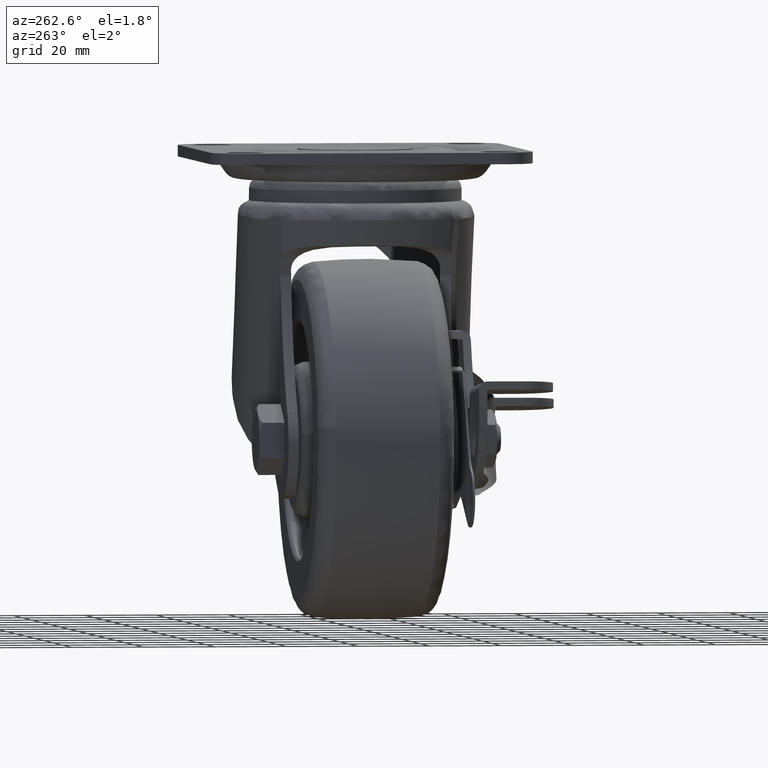
[diagram: clean part render]
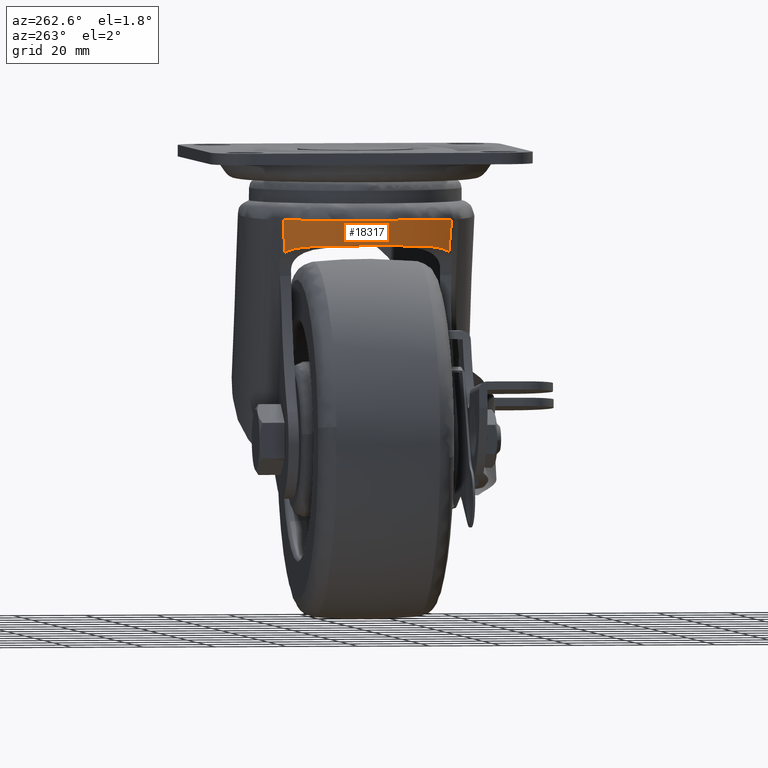
[diagram: same view with one face highlighted and labeled with its STEP entity id]
A machine part, auxiliary view. The second image highlights one B-rep face of the part: STEP entity #18317.
In plain terms, the highlighted face is a freeform B-spline surface patch.
Its self-contained STEP definition (entity closure, byte-faithful):
#17599=CARTESIAN_POINT('',(-24.933118892045599,-22.950727284911999,-27.980760139879798));
#17600=VERTEX_POINT('',#17599);
#17622=CARTESIAN_POINT('',(-28.989097889115950,-15.699060261423950,-26.342088645274750));
#17623=VERTEX_POINT('',#17622);
#17624=CARTESIAN_POINT('',(-28.989097889115950,-15.699060261423950,-26.342088645274750));
#17625=CARTESIAN_POINT('',(-28.717151083542220,-16.360257172583740,-26.367188820546300));
#17626=CARTESIAN_POINT('',(-28.427844731329021,-17.009941421769319,-26.408512831152091));
#17627=CARTESIAN_POINT('',(-27.814842183975721,-18.284281183525980,-26.537615192077460));
#17628=CARTESIAN_POINT('',(-27.491145303498310,-18.908957324959399,-26.625258347250469));
#17629=CARTESIAN_POINT('',(-26.979942690302060,-19.824981146487200,-26.806310295977191));
#17630=CARTESIAN_POINT('',(-26.805264507995741,-20.126814869067569,-26.874980793155490));
#17631=CARTESIAN_POINT('',(-26.536839328768369,-20.573898067478851,-26.993109369107291));
#17632=CARTESIAN_POINT('',(-26.446296227558982,-20.721980141726672,-27.035012892360271));
#17633=CARTESIAN_POINT('',(-26.263074648218659,-21.016168870469190,-27.124418813689431));
#17634=CARTESIAN_POINT('',(-26.170289647923958,-21.162440040984599,-27.171978355026830));
#17635=CARTESIAN_POINT('',(-25.889441133211360,-21.597047830444861,-27.323625127078511));
#17636=CARTESIAN_POINT('',(-25.700108610537491,-21.879307004310562,-27.435963292954401));
#17637=CARTESIAN_POINT('',(-25.318466186563580,-22.427610226136618,-27.687149081212951));
#17638=CARTESIAN_POINT('',(-25.126150863697980,-22.693663643570680,-27.825971683841811));
#17639=CARTESIAN_POINT('',(-24.933118892045592,-22.950727284912009,-27.980760139879791));
#17640=B_SPLINE_CURVE_WITH_KNOTS('',3,(#17624,#17625,#17626,#17627,#17628,#17629,#17630,#17631,#17632,#17633,#17634,#17635,#17636,#17637,#17638,#17639),.UNSPECIFIED.,.F.,.U.,(4,2,2,2,2,2,2,4),(0.0,0.250000000000000,0.500000000000000,0.625000000000001,0.687500000000000,0.750000000000000,0.875000000000000,1.0),.UNSPECIFIED.);
#17641=EDGE_CURVE('',#17623,#17600,#17640,.T.);
#17731=CARTESIAN_POINT('',(-28.989097889125951,15.699060261399550,-26.342088645273801));
#17732=VERTEX_POINT('',#17731);
#17738=CARTESIAN_POINT('',(-24.933118892045449,22.950727284912151,-27.980760139879902));
#17739=VERTEX_POINT('',#17738);
#17740=CARTESIAN_POINT('',(-24.933118892045460,22.950727284912169,-27.980760139879891));
#17741=CARTESIAN_POINT('',(-25.125653332762120,22.694326213159339,-27.826370643893529));
#17742=CARTESIAN_POINT('',(-25.317242263424180,22.429292377552109,-27.688046423535869));
#17743=CARTESIAN_POINT('',(-25.697075953674268,21.883739404295671,-27.437868528875409));
#17744=CARTESIAN_POINT('',(-25.885326002857941,21.603210786973332,-27.326041507284540));
#17745=CARTESIAN_POINT('',(-26.164351260548582,21.171727801621600,-27.175091771772919));
#17746=CARTESIAN_POINT('',(-26.256803375894080,21.026115229579649,-27.127583028022691));
#17747=CARTESIAN_POINT('',(-26.440473376066372,20.731444799209360,-27.037756831936250));
#17748=CARTESIAN_POINT('',(-26.531578877921781,20.582557694149099,-26.995501644667421));
#17749=CARTESIAN_POINT('',(-26.801158601565650,20.133849623506649,-26.876639329625689));
#17750=CARTESIAN_POINT('',(-26.976482571863180,19.831052447377171,-26.807614696704970));
#17751=CARTESIAN_POINT('',(-27.489324091044150,18.912475255993819,-26.625747494256210));
#17752=CARTESIAN_POINT('',(-27.813718604102998,18.286545524922079,-26.537881083746591));
#17753=CARTESIAN_POINT('',(-28.427612290348218,17.010495885461410,-26.408532590933671));
#17754=CARTESIAN_POINT('',(-28.717110570333020,16.360355674209579,-26.367192559838809));
#17755=CARTESIAN_POINT('',(-28.989097889126050,15.699060261399600,-26.342088645273801));
#17756=B_SPLINE_CURVE_WITH_KNOTS('',3,(#17740,#17741,#17742,#17743,#17744,#17745,#17746,#17747,#17748,#17749,#17750,#17751,#17752,#17753,#17754,#17755),.UNSPECIFIED.,.F.,.U.,(4,2,2,2,2,2,2,4),(0.0,0.125000000000000,0.250000000000000,0.312500000000000,0.375000000000000,0.500000000000000,0.750000000000000,1.0),.UNSPECIFIED.);
#17757=EDGE_CURVE('',#17739,#17732,#17756,.T.);
#17896=CARTESIAN_POINT('',(-28.989097889115971,-15.699060261423959,-26.342088645274711));
#17897=CARTESIAN_POINT('',(-29.497584835626331,-14.462752308933309,-26.295156262841360));
#17898=CARTESIAN_POINT('',(-29.947561954378038,-13.198413713781280,-26.253624226732171));
#17899=CARTESIAN_POINT('',(-30.385884363806600,-11.743502661384730,-26.213167898227411));
#17900=CARTESIAN_POINT('',(-30.433641440236929,-11.581392953051379,-26.208760010492409));
#17901=CARTESIAN_POINT('',(-30.527253446122870,-11.256262263797129,-26.200119799586819));
#17902=CARTESIAN_POINT('',(-30.573119477066129,-11.093195066427150,-26.195886451769919));
#17903=CARTESIAN_POINT('',(-30.707481867365999,-10.603977978708830,-26.183485057536519));
#17904=CARTESIAN_POINT('',(-30.792870700798641,-10.277379850672880,-26.175603829879250));
#17905=CARTESIAN_POINT('',(-31.036615643762818,-9.296240066590734,-26.153106633131340));
#17906=CARTESIAN_POINT('',(-31.182557908192528,-8.640353845895172,-26.139636438440188));
#17907=CARTESIAN_POINT('',(-31.571526028387140,-6.667403217933400,-26.103735417388151));
#17908=CARTESIAN_POINT('',(-31.765806723480559,-5.345059139515455,-26.085803677066949));
#17909=CARTESIAN_POINT('',(-32.025740625137850,-2.686439120907950,-26.061812270082559));
#17910=CARTESIAN_POINT('',(-32.091395724909532,-1.350163385774954,-26.055752428679892));
#17911=CARTESIAN_POINT('',(-32.091727769432943,0.664881075687014,-26.055721781599040));
#17912=CARTESIAN_POINT('',(-32.075451300158193,1.338337482977773,-26.057224068896499));
#17913=CARTESIAN_POINT('',(-32.025970821428913,2.351237010561532,-26.061791023400730));
#17914=CARTESIAN_POINT('',(-32.005262085544139,2.689691836481242,-26.063702400514590));
#17915=CARTESIAN_POINT('',(-31.955672928806401,3.363988160731173,-26.068279385793229));
#17916=CARTESIAN_POINT('',(-31.926784870833810,3.700172679826736,-26.070945698849709));
#17917=CARTESIAN_POINT('',(-31.762096891836340,5.376328781664697,-26.086146087503788));
#17918=CARTESIAN_POINT('',(-31.565702221815549,6.702035799015032,-26.104272943708359));
#17919=CARTESIAN_POINT('',(-31.046796484013559,9.323760865072805,-26.152166960851812));
#17920=CARTESIAN_POINT('',(-30.724279042662641,10.619777413382870,-26.181934710059100));
#17921=CARTESIAN_POINT('',(-29.952654452660759,13.182010119908711,-26.253154198782418));
#17922=CARTESIAN_POINT('',(-29.503558255230889,14.448228856143411,-26.294604927521469));
#17923=CARTESIAN_POINT('',(-28.989097889125940,15.699060261399550,-26.342088645273801));
#17924=B_SPLINE_CURVE_WITH_KNOTS('',3,(#17896,#17897,#17898,#17899,#17900,#17901,#17902,#17903,#17904,#17905,#17906,#17907,#17908,#17909,#17910,#17911,#17912,#17913,#17914,#17915,#17916,#17917,#17918,#17919,#17920,#17921,#17922,#17923),.UNSPECIFIED.,.F.,.U.,(4,2,2,2,2,2,2,2,2,2,2,2,2,4),(0.0,0.124999999999999,0.140624999999999,0.156249999999999,0.187499999999999,0.249999999999999,0.375000000000000,0.500000000000000,0.562500000000000,0.593750000000000,0.625000000000000,0.750000000000000,0.875000000000000,1.0),.UNSPECIFIED.);
#17925=EDGE_CURVE('',#17623,#17732,#17924,.T.);
#18236=CARTESIAN_POINT('',(-23.581607445050523,-24.777228543167151,-28.432234692662185));
#18237=CARTESIAN_POINT('',(-42.047297043654325,0.000000061690876,-28.432234692662171));
#18238=CARTESIAN_POINT('',(-23.581607385933214,24.777228622490636,-28.432234692662163));
#18239=CARTESIAN_POINT('',(-24.059701308835805,-25.133536870803329,-23.460754030875432));
#18240=CARTESIAN_POINT('',(-42.790936304014714,0.000000062578020,-23.460754030875428));
#18241=CARTESIAN_POINT('',(-24.059701248868375,25.133536951267530,-23.460754030875435));
#18242=CARTESIAN_POINT('',(-24.643517967798619,-25.568637074253349,-18.506867146909801));
#18243=CARTESIAN_POINT('',(-43.699019467893514,0.000000063661342,-18.506867146909791));
#18244=CARTESIAN_POINT('',(-24.643517906793054,25.568637156110501,-18.506867146909794));
#18252=(BOUNDED_SURFACE()B_SPLINE_SURFACE(2,2,((#18236,#18239,#18242),(#18237,#18240,#18243),(#18238,#18241,#18244)),.UNSPECIFIED.,.F.,.F.,.U.)B_SPLINE_SURFACE_WITH_KNOTS((3,3),(3,3),(17.946496626281739,120.828131059265100),(119.082137799835190,129.095917009735100),.UNSPECIFIED.)GEOMETRIC_REPRESENTATION_ITEM()RATIONAL_B_SPLINE_SURFACE(((0.900632462854865,0.900557209129676,0.900640877915671),(0.722142701875028,0.722082362135261,0.722149449216477),(0.900632463567532,0.900557209842284,0.900640878628345)))REPRESENTATION_ITEM('')SURFACE());
#18253=CARTESIAN_POINT('',(-25.990007021945448,-23.529887199652048,-18.976680413063200));
#18254=VERTEX_POINT('',#18253);
#18255=CARTESIAN_POINT('',(-24.933118892045599,-22.950727284911999,-27.980760139879798));
#18256=CARTESIAN_POINT('',(-25.260914084938960,-23.115313812513548,-24.974770694155179));
#18257=CARTESIAN_POINT('',(-25.611287320444902,-23.311309674175011,-21.973093646867529));
#18258=CARTESIAN_POINT('',(-25.990007021945448,-23.529887199652048,-18.976680413063200));
#18259=B_SPLINE_CURVE_WITH_KNOTS('',3,(#18255,#18256,#18257,#18258),.UNSPECIFIED.,.F.,.U.,(4,4),(0.0,0.999996767673838),.UNSPECIFIED.);
#18260=EDGE_CURVE('',#17600,#18254,#18259,.T.);
#18261=ORIENTED_EDGE('',*,*,#18260,.T.);
#18262=CARTESIAN_POINT('',(-31.704277006694252,-10.655605231508259,-18.976680384425102));
#18263=VERTEX_POINT('',#18262);
#18264=CARTESIAN_POINT('',(-25.990007021945448,-23.529887199652048,-18.976680413063200));
#18265=CARTESIAN_POINT('',(-28.588061080629810,-19.593221629109099,-18.976680457939370));
#18266=CARTESIAN_POINT('',(-30.527712460328949,-15.223176235925470,-18.976680339548519));
#18267=CARTESIAN_POINT('',(-31.704277006694252,-10.655605231508259,-18.976680384425102));
#18268=B_SPLINE_CURVE_WITH_KNOTS('',3,(#18264,#18265,#18266,#18267),.UNSPECIFIED.,.F.,.U.,(4,4),(0.000000023307477,1.0),.UNSPECIFIED.);
#18269=EDGE_CURVE('',#18254,#18263,#18268,.T.);
#18270=ORIENTED_EDGE('',*,*,#18269,.T.);
#18271=CARTESIAN_POINT('',(-31.704014023903401,10.655537493845561,-18.976718366299352));
#18272=VERTEX_POINT('',#18271);
#18273=CARTESIAN_POINT('',(-31.704277006694252,-10.655605231508259,-18.976680384425102));
#18274=CARTESIAN_POINT('',(-31.777137787011451,-10.365462403245720,-18.976656656741291));
#18275=CARTESIAN_POINT('',(-31.922859421213239,-9.785176453764008,-18.976609201349721));
#18276=CARTESIAN_POINT('',(-32.118246704473648,-8.909179595723801,-18.976185797202081));
#18277=CARTESIAN_POINT('',(-32.296542561276873,-8.029592998831692,-18.975504558392249));
#18278=CARTESIAN_POINT('',(-32.456010276500663,-7.146375152389422,-18.974540157156842));
#18279=CARTESIAN_POINT('',(-32.597024168506380,-6.260027770086422,-18.973299515193421));
#18280=CARTESIAN_POINT('',(-32.719403259645119,-5.370908801798453,-18.971780271295660));
#18281=CARTESIAN_POINT('',(-32.823125297593982,-4.479416303924484,-18.969984946849081));
#18282=CARTESIAN_POINT('',(-32.908137171800192,-3.585938935137054,-18.967905816257161));
#18283=CARTESIAN_POINT('',(-32.974399363441222,-2.690869085177055,-18.965571260165181));
#18284=CARTESIAN_POINT('',(-33.021897850496373,-1.794598844644403,-18.962875480114981));
#18285=CARTESIAN_POINT('',(-33.050552134314742,-0.897521975065193,-18.960213295281871));
#18286=CARTESIAN_POINT('',(-33.063651365696657,0.275874605769020,-18.954850157526440));
#18287=CARTESIAN_POINT('',(-33.020664359365043,2.369599726584771,-18.959117290793479));
#18288=CARTESIAN_POINT('',(-32.810340982400817,4.886572107191196,-18.965489467324069));
#18289=CARTESIAN_POINT('',(-32.423373847231652,7.403003590337671,-18.972242604916861));
#18290=CARTESIAN_POINT('',(-32.072973113238582,9.164027286163936,-18.975849472772349));
#18291=CARTESIAN_POINT('',(-31.816655335237002,10.200187153165150,-18.976453097984599));
#18292=CARTESIAN_POINT('',(-31.704014023903401,10.655537493845561,-18.976718366299352));
#18293=B_SPLINE_CURVE_WITH_KNOTS('',3,(#18273,#18274,#18275,#18276,#18277,#18278,#18279,#18280,#18281,#18282,#18283,#18284,#18285,#18286,#18287,#18288,#18289,#18290,#18291,#18292),.UNSPECIFIED.,.F.,.U.,(4,1,1,1,1,1,1,1,1,1,1,1,1,1,1,1,1,4),(0.0,0.041668253653363,0.083336549379077,0.125004930732124,0.166673441268622,0.208342124546421,0.250011024125683,0.291680183569454,0.333349646444251,0.375019456320643,0.416689656773828,0.458360291384224,0.500031403738032,0.580134144059664,0.749998502352058,0.851332571342182,0.934666612026834,0.999999879957052),.UNSPECIFIED.);
#18294=EDGE_CURVE('',#18263,#18272,#18293,.T.);
#18295=ORIENTED_EDGE('',*,*,#18294,.T.);
#18296=CARTESIAN_POINT('',(-25.990173148592500,23.529996772925902,-18.976712368245099));
#18297=VERTEX_POINT('',#18296);
#18298=CARTESIAN_POINT('',(-31.704014023903401,10.655537493845561,-18.976718366299352));
#18299=CARTESIAN_POINT('',(-30.527591198872820,15.223167058151960,-18.976716330926688));
#18300=CARTESIAN_POINT('',(-28.588085476252989,19.593272637167921,-18.976714403617478));
#18301=CARTESIAN_POINT('',(-25.990173148592500,23.529996772925902,-18.976712368245099));
#18302=B_SPLINE_CURVE_WITH_KNOTS('',3,(#18298,#18299,#18300,#18301),.UNSPECIFIED.,.F.,.U.,(4,4),(0.0,0.999999973106365),.UNSPECIFIED.);
#18303=EDGE_CURVE('',#18272,#18297,#18302,.T.);
#18304=ORIENTED_EDGE('',*,*,#18303,.T.);
#18305=CARTESIAN_POINT('',(-25.990173148592500,23.529996772925902,-18.976712368245099));
#18306=CARTESIAN_POINT('',(-25.611398093504299,23.311382740014789,-21.973114954359190));
#18307=CARTESIAN_POINT('',(-25.260969475490121,23.115350353413490,-24.974781348722910));
#18308=CARTESIAN_POINT('',(-24.933118892045400,22.950727284912102,-27.980760139879902));
#18309=B_SPLINE_CURVE_WITH_KNOTS('',3,(#18305,#18306,#18307,#18308),.UNSPECIFIED.,.F.,.U.,(4,4),(0.000003554974236,1.0),.UNSPECIFIED.);
#18310=EDGE_CURVE('',#18297,#17739,#18309,.T.);
#18311=ORIENTED_EDGE('',*,*,#18310,.T.);
#18312=ORIENTED_EDGE('',*,*,#17757,.T.);
#18313=ORIENTED_EDGE('',*,*,#17925,.F.);
#18314=ORIENTED_EDGE('',*,*,#17641,.T.);
#18315=EDGE_LOOP('',(#18261,#18270,#18295,#18304,#18311,#18312,#18313,#18314));
#18316=FACE_OUTER_BOUND('',#18315,.T.);
#18317=ADVANCED_FACE('',(#18316),#18252,.F.);